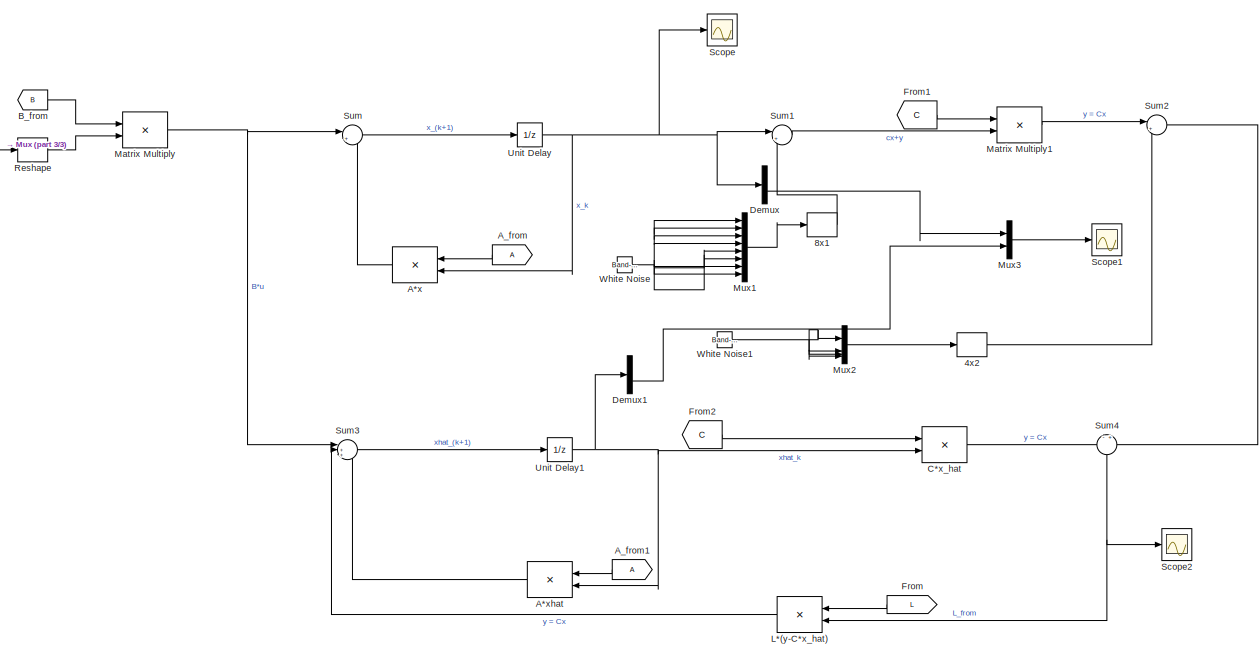
[diagram: root canvas - part 1/3, center side, full height]
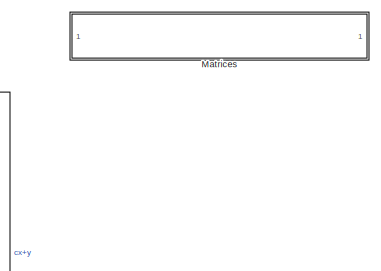
[diagram: root canvas - part 2/3, top right region]
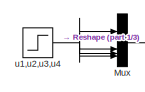
[diagram: root canvas - part 3/3, top left region]
MODEL slx_71fcde124aaf
KIND model
CONFIG AbsTol = auto
CONFIG EnableMultiTasking = off
CONFIG FixedStep = 0.05
CONFIG MaxStep = auto
CONFIG MinStep = auto
CONFIG RelTol = 1e-3
CONFIG SampleTimeConstraint = Unconstrained
CONFIG SolverName = ode1
CONFIG StartTime = 0.0
CONFIG StopTime = 10.0
BLOCK [Reshape] 4x2
  OutputDimensionality = Customize
  OutputDimensions = [4,1]
BLOCK [Reshape] 8x1
  OutputDimensionality = Customize
  OutputDimensions = [8,1]
BLOCK [Product] A*x
  Multiplication = Matrix(*)
BLOCK [Product] A*xhat
  Multiplication = Matrix(*)
BLOCK [From] A_from
  TagVisibility = global
BLOCK [From] A_from1
  TagVisibility = global
BLOCK [From] B_from
  GotoTag = B
  TagVisibility = global
BLOCK [Product] C*x_hat
  Multiplication = Matrix(*)
BLOCK [Demux] Demux
BLOCK [Demux] Demux1
BLOCK [From] From
  GotoTag = L
  TagVisibility = global
BLOCK [From] From1
  GotoTag = C
  TagVisibility = global
BLOCK [From] From2
  GotoTag = C
  TagVisibility = global
BLOCK [Product] L*(y-C*x_hat)
  Multiplication = Matrix(*)
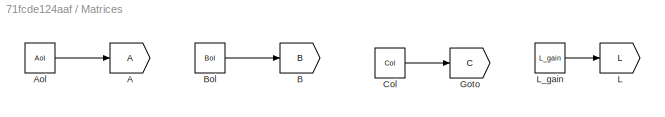
BLOCK [SubSystem] Matrices
BLOCK [Goto] Matrices/A
  TagVisibility = global
BLOCK [Constant] Matrices/Aol
  Value = Aol
BLOCK [Goto] Matrices/B
  GotoTag = B
  TagVisibility = global
BLOCK [Constant] Matrices/Bol
  Value = Bol
BLOCK [Constant] Matrices/Col
  Value = Col
BLOCK [Goto] Matrices/Goto
  GotoTag = C
  TagVisibility = global
BLOCK [Goto] Matrices/L
  GotoTag = L
  TagVisibility = global
BLOCK [Constant] Matrices/L_gain
  Value = L_gain
BLOCK [Product] Matrix Multiply
  Multiplication = Matrix(*)
BLOCK [Product] Matrix Multiply1
  Multiplication = Matrix(*)
BLOCK [Mux] Mux
  DisplayOption = bar
BLOCK [Mux] Mux1
  DisplayOption = bar
  Inputs = 8
BLOCK [Mux] Mux2
  DisplayOption = bar
BLOCK [Mux] Mux3
  DisplayOption = bar
  Inputs = 2
BLOCK [Reshape] Reshape
  OutputDimensionality = Customize
  OutputDimensions = [4,1]
BLOCK [Scope] Scope
  Floating = off
  NumInputPorts = 1
  ScopeSpecificationString = Simulink.scopes.TimeScopeBlockCfg('CurrentConfiguration', extmgr.ConfigurationSet(extmgr.Configuration('Core','General UI',true),extmgr.Configuration('Core','Source UI',true),extmgr.Configuration('Sources','WiredSimulink',true),extmgr.Configuration('Visuals','Time Domain',true,'SerializedDisplays',{struct('MinYLimReal','-5.0625','MaxYLimReal','45.5625','YLabelReal','','MinYLimMag','0.00000','MaxYL...<+1560ch>
BLOCK [Scope] Scope1
  Floating = off
  NumInputPorts = 1
  ScopeSpecificationString = Simulink.scopes.TimeScopeBlockCfg('CurrentConfiguration', extmgr.ConfigurationSet(extmgr.Configuration('Core','General UI',true),extmgr.Configuration('Core','Source UI',true),extmgr.Configuration('Sources','WiredSimulink',true,'DataLoggingVariableName','ScopeData1'),extmgr.Configuration('Visuals','Time Domain',true,'SerializedDisplays',{struct('MinYLimReal','-6.30526','MaxYLimReal','45.70058','YLa...<+1408ch>
BLOCK [Scope] Scope2
  Floating = off
  NumInputPorts = 1
  ScopeSpecificationString = Simulink.scopes.TimeScopeBlockCfg('CurrentConfiguration', extmgr.ConfigurationSet(extmgr.Configuration('Core','General UI',true),extmgr.Configuration('Core','Source UI',true),extmgr.Configuration('Sources','WiredSimulink',true,'DataLoggingVariableName','ScopeData2'),extmgr.Configuration('Visuals','Time Domain',true,'SerializedDisplays',{struct('MinYLimReal','-4.8926','MaxYLimReal','5.22691','YLabe...<+1396ch>
BLOCK [Sum] Sum
  Inputs = |++
BLOCK [Sum] Sum1
  Inputs = |++
BLOCK [Sum] Sum2
  Inputs = |++
BLOCK [Sum] Sum3
  Inputs = |+++
BLOCK [Sum] Sum4
  Inputs = -+
  NameLocation = left
BLOCK [UnitDelay] Unit Delay
  HasFrameUpgradeWarning = on
  SampleTime = -1
BLOCK [UnitDelay] Unit Delay1
  HasFrameUpgradeWarning = on
  SampleTime = -1
BLOCK [Reference] White Noise  REF=simulink/Sources/Band-Limited
White Noise
  SourceBlock = simulink/Sources/Band-Limited\nWhite Noise
  SourceType = Band-Limited White Noise.
BLOCK [Reference] White Noise1  REF=simulink/Sources/Band-Limited
White Noise
  SourceBlock = simulink/Sources/Band-Limited\nWhite Noise
  SourceType = Band-Limited White Noise.
BLOCK [Step] u1,u2,u3,u4
  SampleTime = 0
LINE 4x2:1 -> Sum2:2
LINE 8x1:1 -> Sum1:2
LINE A*x:1 -> Sum:2
LINE A*xhat:1 -> Sum3:3
LINE A_from1:1 -> A*xhat:1
LINE A_from:1 -> A*x:1
LINE B_from:1 -> Matrix Multiply:1
LINE C*x_hat:1 -> Sum4:1
LINE Demux1:2 -> Mux3:2
LINE Demux:2 -> Mux3:1
LINE From1:1 -> Matrix Multiply1:1
LINE From2:1 -> C*x_hat:1
LINE From:1 -> L*(y-C*x_hat):1
LINE L*(y-C*x_hat):1 -> Sum3:2
LINE Matrices/Aol:1 -> Matrices/A:1
LINE Matrices/Bol:1 -> Matrices/B:1
LINE Matrices/Col:1 -> Matrices/Goto:1
LINE Matrices/L_gain:1 -> Matrices/L:1
LINE Matrix Multiply1:1 -> Sum2:1
NET Matrix Multiply:1 -> Sum3:1, Sum:1
LINE Mux1:1 -> 8x1:1
LINE Mux2:1 -> 4x2:1
LINE Mux3:1 -> Scope1:1
LINE Mux:1 -> Reshape:1
LINE Reshape:1 -> Matrix Multiply:2
LINE Sum1:1 -> Matrix Multiply1:2
LINE Sum2:1 -> Sum4:2
LINE Sum3:1 -> Unit Delay1:1
NET Sum4:1 -> L*(y-C*x_hat):2, Scope2:1
LINE Sum:1 -> Unit Delay:1
NET Unit Delay1:1 -> A*xhat:2, C*x_hat:2, Demux1:1
NET Unit Delay:1 -> A*x:2, Demux:1, Scope:1, Sum1:1
NET White Noise1:1 -> Mux2:1, Mux2:2, Mux2:3, Mux2:4
NET White Noise:1 -> Mux1:1, Mux1:2, Mux1:3, Mux1:4, Mux1:5, Mux1:6, Mux1:7, Mux1:8
NET u1,u2,u3,u4:1 -> Mux:1, Mux:2, Mux:3, Mux:4
note: NET lines group one-source signal fan-out (src -> all destinations, sorted); 1:1 wires keep LINE
